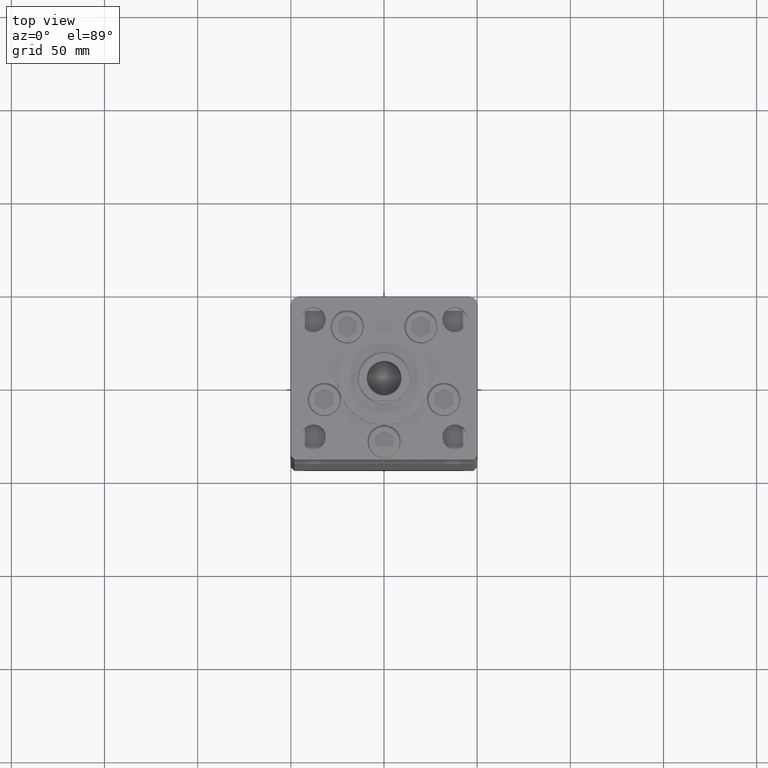
[diagram: clean part render]
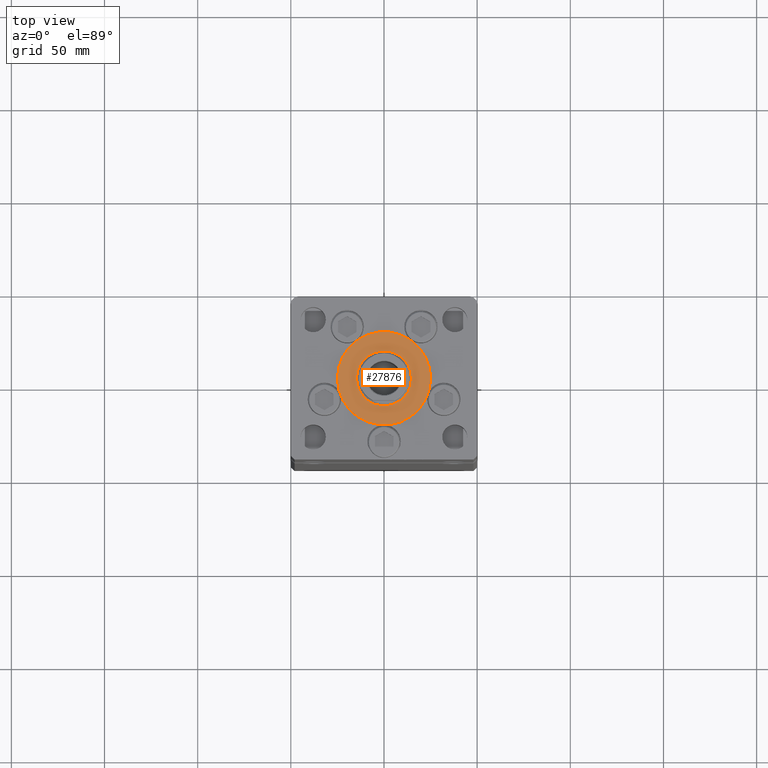
[diagram: same view with one face highlighted and labeled with its STEP entity id]
A machine part, top view. The second image highlights one B-rep face of the part: STEP entity #27876.
In plain terms, the highlighted planar face has unit normal (0, 0, 1).
Its self-contained STEP definition (entity closure, byte-faithful):
#1018 = DIRECTION ( 'NONE',  ( 0.000000000000000000, 0.000000000000000000, 1.000000000000000000 ) ) ;
#2228 = EDGE_CURVE ( 'NONE', #16225, #48680, #45349, .T. ) ;
#2963 = VERTEX_POINT ( 'NONE', #5922 ) ;
#4717 = CARTESIAN_POINT ( 'NONE',  ( 0.000000000000000000, -6.938893903907228378E-15, 2.000000000000000000 ) ) ;
#5319 = DIRECTION ( 'NONE',  ( 1.000000000000000000, 0.000000000000000000, 0.000000000000000000 ) ) ;
#5922 = CARTESIAN_POINT ( 'NONE',  ( 25.00000000000000000, -3.877276906038844941E-15, 2.000000000000000000 ) ) ;
#6172 = AXIS2_PLACEMENT_3D ( 'NONE', #48284, #40487, #53130 ) ;
#7589 = AXIS2_PLACEMENT_3D ( 'NONE', #50204, #1018, #5319 ) ;
#8067 = FACE_BOUND ( 'NONE', #22720, .T. ) ;
#8858 = DIRECTION ( 'NONE',  ( 0.000000000000000000, 0.000000000000000000, 1.000000000000000000 ) ) ;
#10510 = DIRECTION ( 'NONE',  ( 0.000000000000000000, 0.000000000000000000, 1.000000000000000000 ) ) ;
#10871 = EDGE_CURVE ( 'NONE', #47024, #2963, #24346, .T. ) ;
#12173 = ORIENTED_EDGE ( 'NONE', *, *, #39334, .T. ) ;
#12205 = CIRCLE ( 'NONE', #6172, 25.00000000000000000 ) ;
#12374 = PLANE ( 'NONE',  #48737 ) ;
#12410 = ORIENTED_EDGE ( 'NONE', *, *, #10871, .T. ) ;
#12902 = CARTESIAN_POINT ( 'NONE',  ( 0.000000000000000000, -6.938893903907228378E-15, 2.000000000000000000 ) ) ;
#14902 = AXIS2_PLACEMENT_3D ( 'NONE', #4717, #50380, #42040 ) ;
#15903 = CIRCLE ( 'NONE', #17626, 14.75000000000000178 ) ;
#16225 = VERTEX_POINT ( 'NONE', #51911 ) ;
#16268 = EDGE_CURVE ( 'NONE', #48680, #16225, #15903, .T. ) ;
#17626 = AXIS2_PLACEMENT_3D ( 'NONE', #47331, #10510, #18850 ) ;
#17824 = EDGE_LOOP ( 'NONE', ( #12410, #12173 ) ) ;
#18850 = DIRECTION ( 'NONE',  ( 1.000000000000000000, 0.000000000000000000, 0.000000000000000000 ) ) ;
#21495 = DIRECTION ( 'NONE',  ( 1.000000000000000000, 0.000000000000000000, -0.000000000000000000 ) ) ;
#22720 = EDGE_LOOP ( 'NONE', ( #49205, #47838 ) ) ;
#24346 = CIRCLE ( 'NONE', #14902, 25.00000000000000000 ) ;
#24478 = FACE_OUTER_BOUND ( 'NONE', #17824, .T. ) ;
#27876 = ADVANCED_FACE ( 'NONE', ( #8067, #24478 ), #12374, .T. ) ;
#29416 = CARTESIAN_POINT ( 'NONE',  ( 14.75000000000000178, -6.938893903907228378E-15, 2.000000000000000000 ) ) ;
#35486 = CARTESIAN_POINT ( 'NONE',  ( -25.00000000000000000, -6.938893903907228378E-15, 2.000000000000000000 ) ) ;
#39334 = EDGE_CURVE ( 'NONE', #2963, #47024, #12205, .T. ) ;
#40487 = DIRECTION ( 'NONE',  ( 0.000000000000000000, 0.000000000000000000, 1.000000000000000000 ) ) ;
#42040 = DIRECTION ( 'NONE',  ( 1.000000000000000000, 0.000000000000000000, 0.000000000000000000 ) ) ;
#45349 = CIRCLE ( 'NONE', #7589, 14.75000000000000178 ) ;
#47024 = VERTEX_POINT ( 'NONE', #35486 ) ;
#47331 = CARTESIAN_POINT ( 'NONE',  ( 0.000000000000000000, -6.938893903907228378E-15, 2.000000000000000000 ) ) ;
#47838 = ORIENTED_EDGE ( 'NONE', *, *, #2228, .F. ) ;
#48284 = CARTESIAN_POINT ( 'NONE',  ( 0.000000000000000000, -6.938893903907228378E-15, 2.000000000000000000 ) ) ;
#48680 = VERTEX_POINT ( 'NONE', #29416 ) ;
#48737 = AXIS2_PLACEMENT_3D ( 'NONE', #12902, #8858, #21495 ) ;
#49205 = ORIENTED_EDGE ( 'NONE', *, *, #16268, .F. ) ;
#50204 = CARTESIAN_POINT ( 'NONE',  ( 0.000000000000000000, -6.938893903907228378E-15, 2.000000000000000000 ) ) ;
#50380 = DIRECTION ( 'NONE',  ( 0.000000000000000000, 0.000000000000000000, 1.000000000000000000 ) ) ;
#51911 = CARTESIAN_POINT ( 'NONE',  ( -14.75000000000000178, -5.132539875164881787E-15, 2.000000000000000000 ) ) ;
#53130 = DIRECTION ( 'NONE',  ( 1.000000000000000000, 0.000000000000000000, 0.000000000000000000 ) ) ;